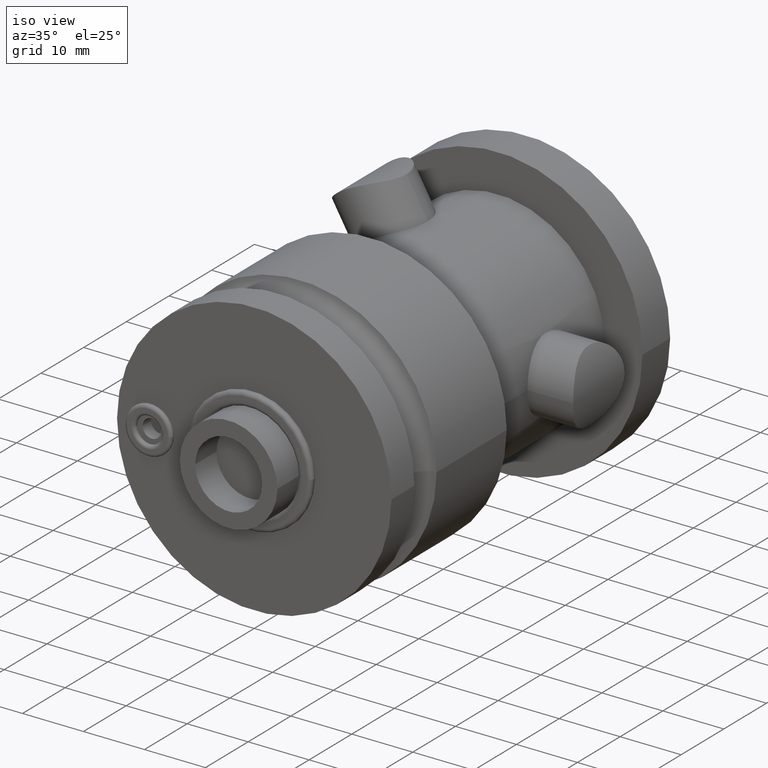
[diagram: clean part render]
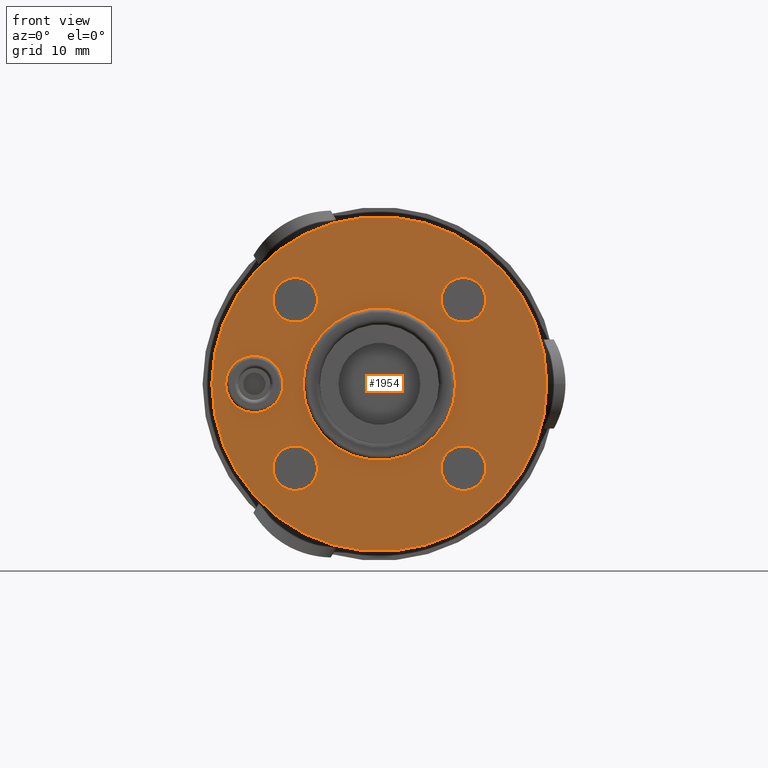
[diagram: tour spotlight — one face highlighted and labeled with its STEP entity id]
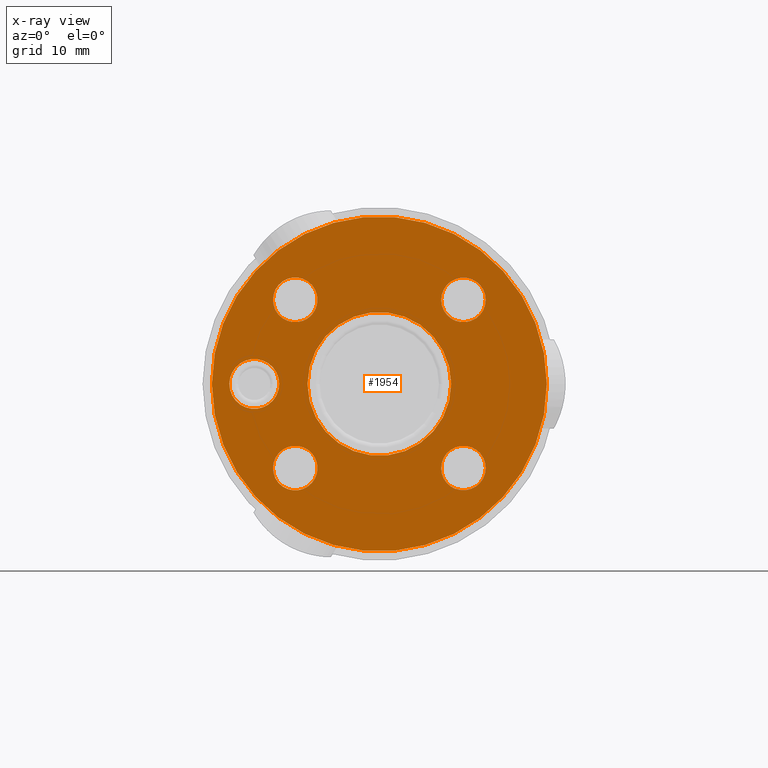
[diagram: x-ray of the same camera — body ghosted, this tour face saturated]
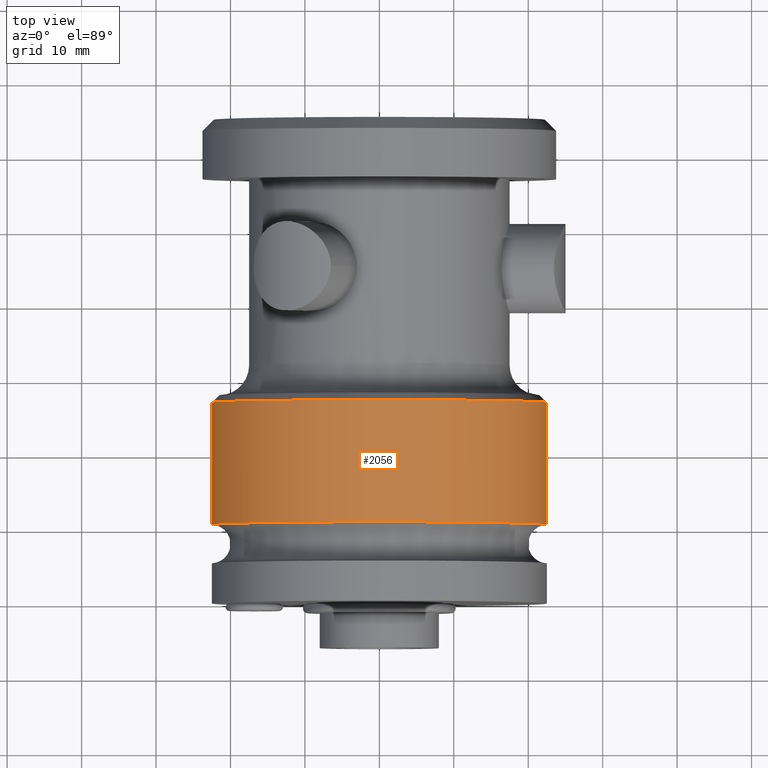
[diagram: tour spotlight — one face highlighted and labeled with its STEP entity id]
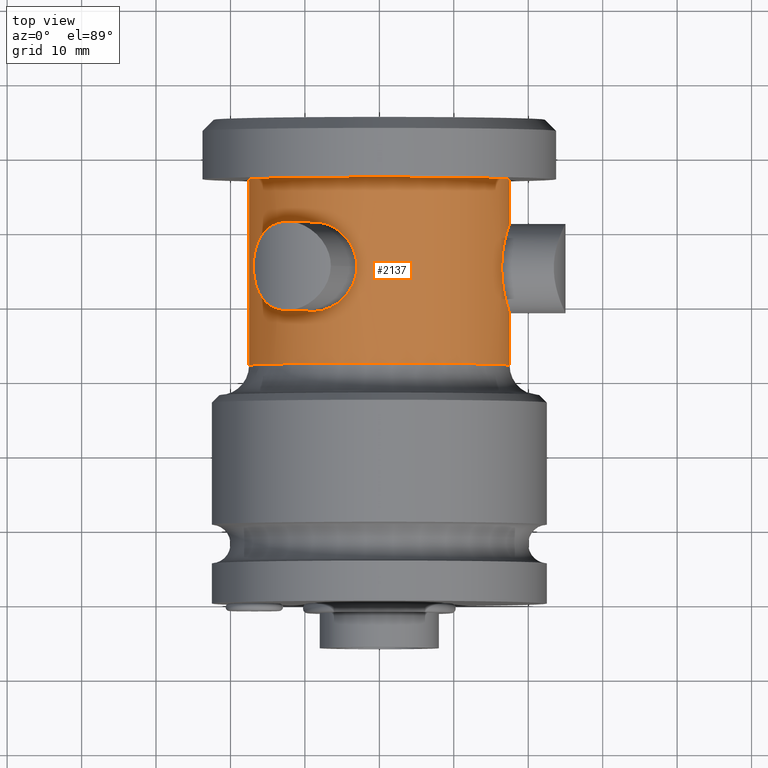
[diagram: tour spotlight — one face highlighted and labeled with its STEP entity id]
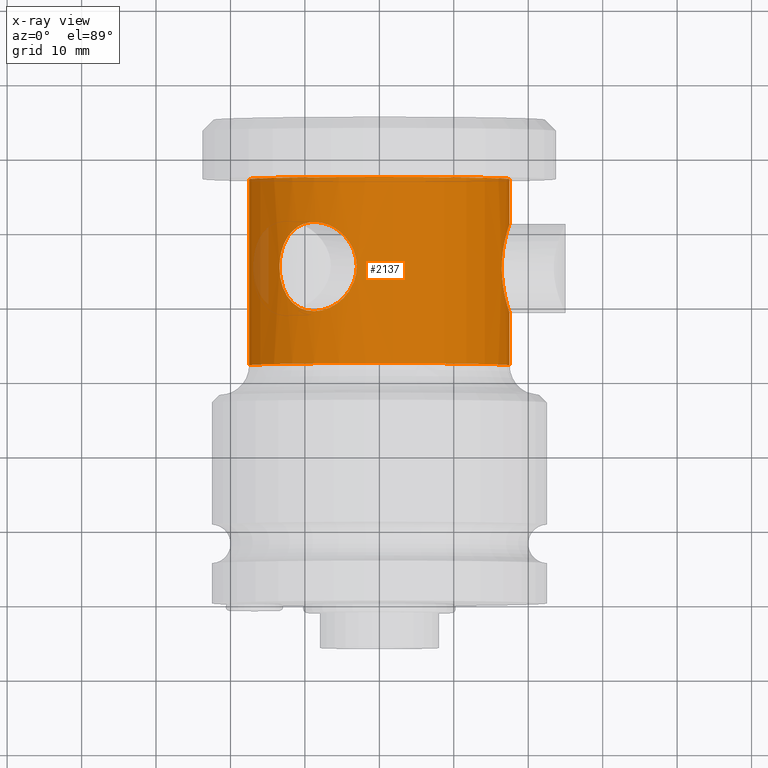
[diagram: x-ray of the same camera — body ghosted, this tour face saturated]
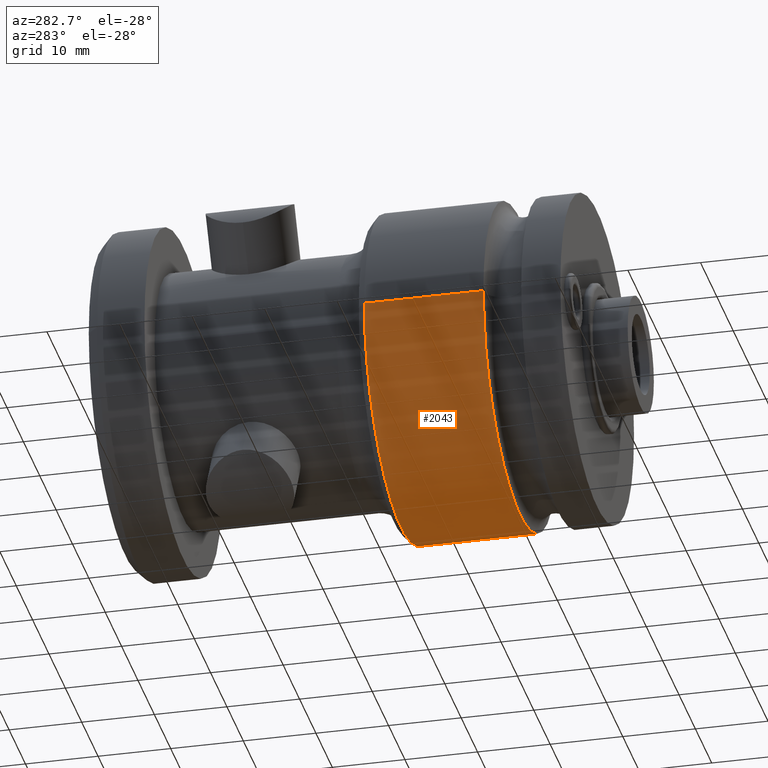
[diagram: tour spotlight — one face highlighted and labeled with its STEP entity id]
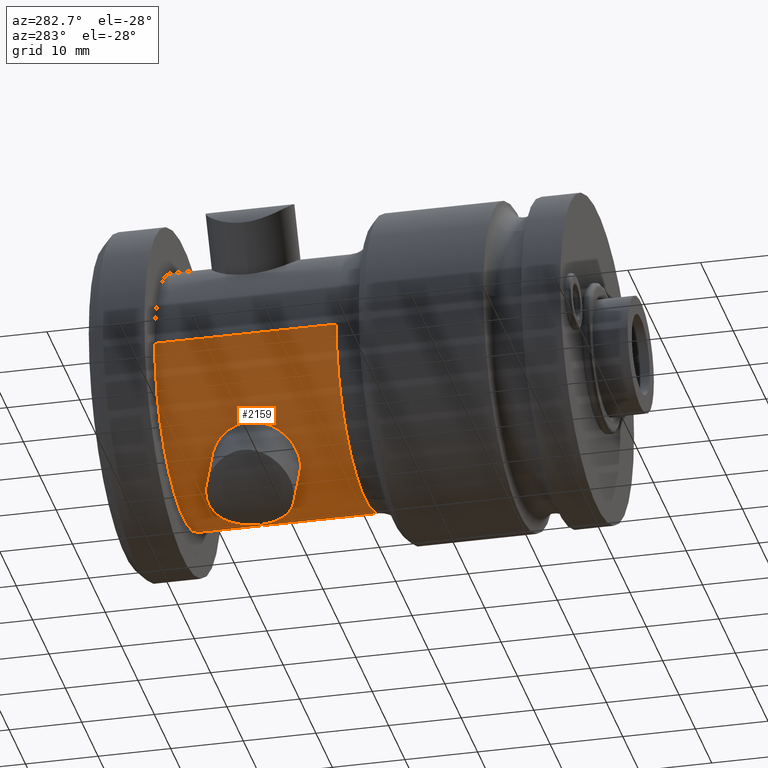
[diagram: tour spotlight — one face highlighted and labeled with its STEP entity id]
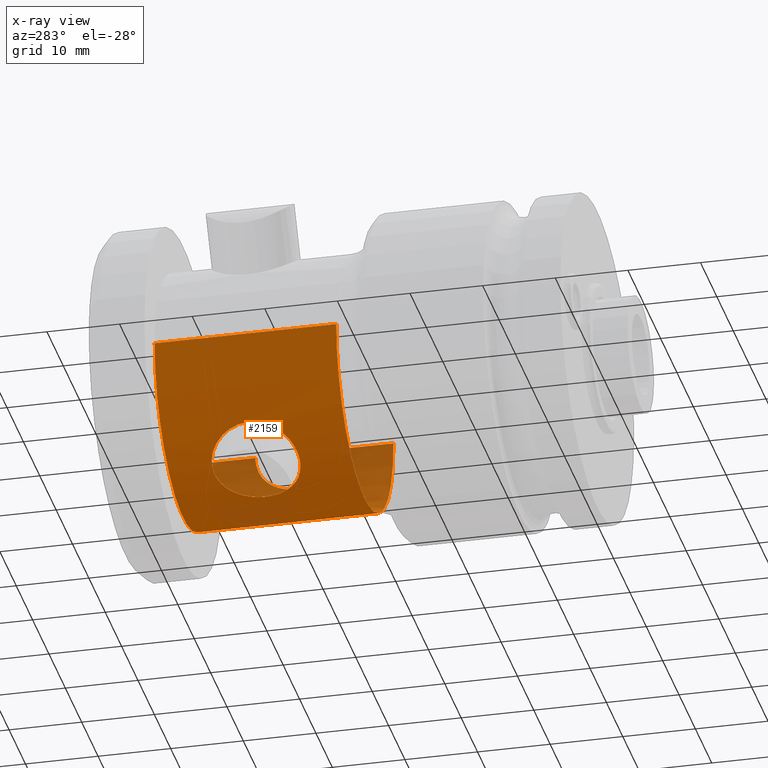
[diagram: x-ray of the same camera — body ghosted, this tour face saturated]
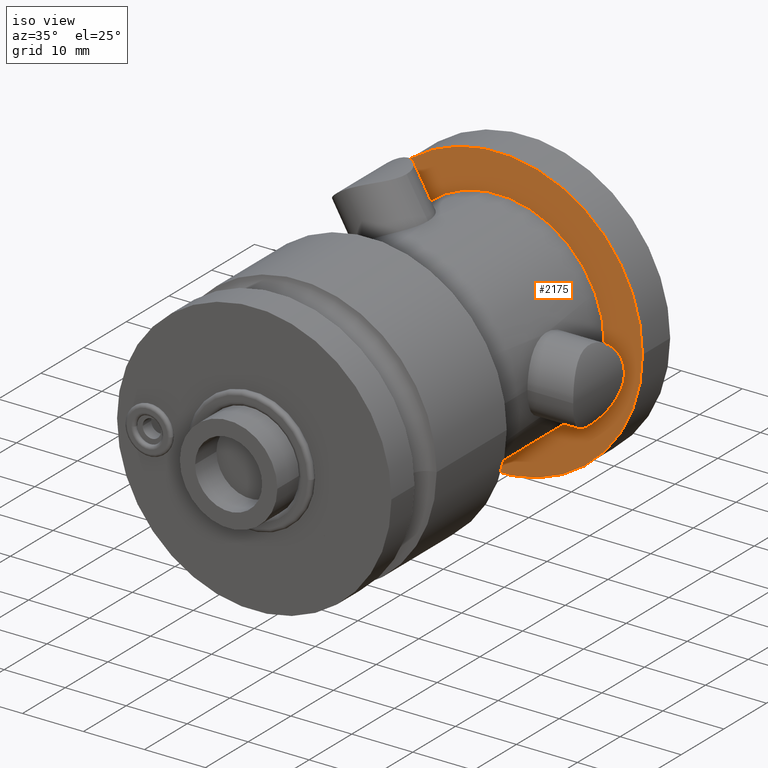
[diagram: tour spotlight — one face highlighted and labeled with its STEP entity id]
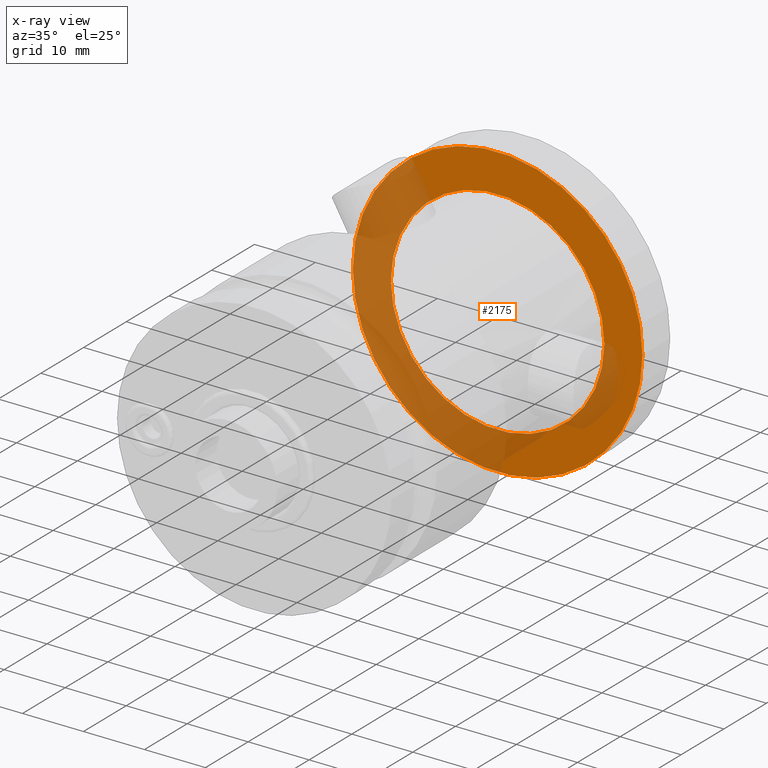
[diagram: x-ray of the same camera — body ghosted, this tour face saturated]
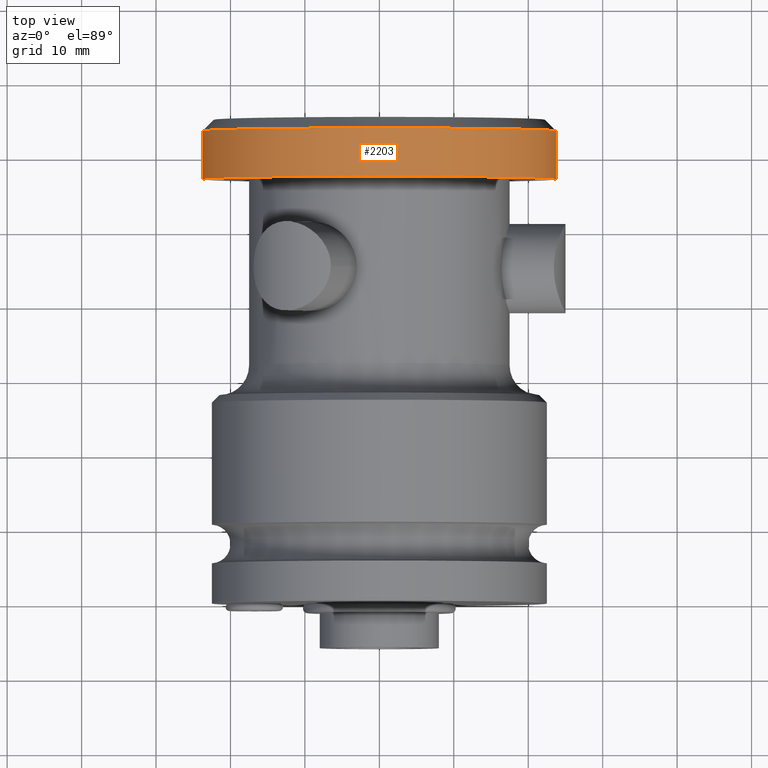
[diagram: tour spotlight — one face highlighted and labeled with its STEP entity id]
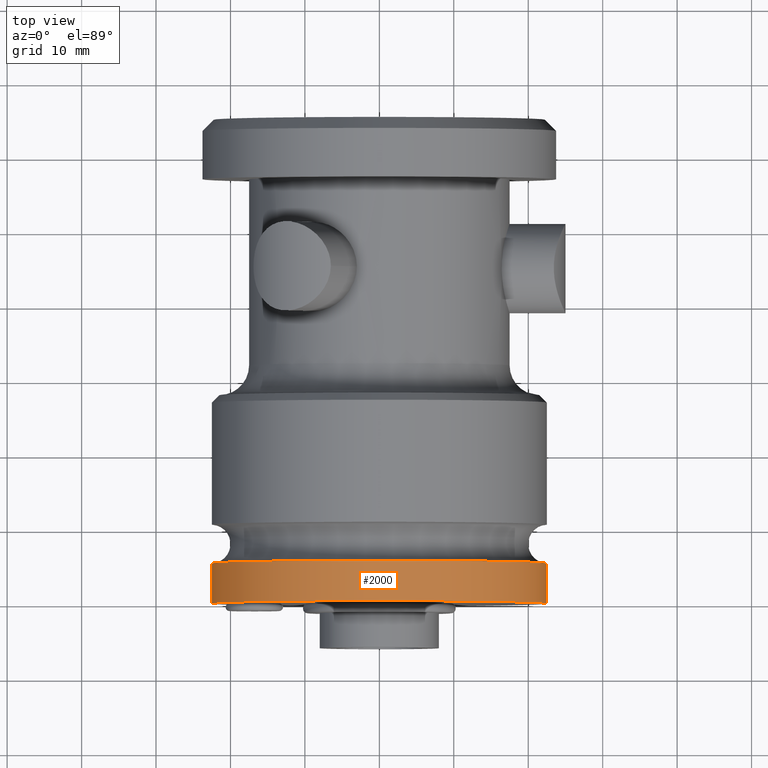
[diagram: tour spotlight — one face highlighted and labeled with its STEP entity id]
A machine part: a face-by-face anatomy tour. The part has 97 B-rep faces; the first image is the clean iso view, then the 8 largest visible faces are spotlighted one at a time (largest first), each with its STEP entity span.

Face 1 — front view, entity #1954. An x-ray twin of the same camera follows (body ghosted, this face saturated) — the face is partly hidden behind the body. In plain terms, the highlighted planar face has unit normal (0, 1, 0).
Definition (entity closure, byte-faithful):
#336=CARTESIAN_POINT('',(1.13E1,0.E0,1.13E1));
#337=DIRECTION('',(0.E0,-1.E0,0.E0));
#338=DIRECTION('',(-1.E0,0.E0,0.E0));
#339=AXIS2_PLACEMENT_3D('',#336,#337,#338);
#344=CARTESIAN_POINT('',(1.13E1,0.E0,1.13E1));
#345=DIRECTION('',(0.E0,-1.E0,0.E0));
#346=DIRECTION('',(1.E0,0.E0,0.E0));
#347=AXIS2_PLACEMENT_3D('',#344,#345,#346);
#352=CARTESIAN_POINT('',(-1.13E1,0.E0,1.13E1));
#353=DIRECTION('',(0.E0,-1.E0,0.E0));
#354=DIRECTION('',(-1.E0,0.E0,0.E0));
#355=AXIS2_PLACEMENT_3D('',#352,#353,#354);
#360=CARTESIAN_POINT('',(-1.13E1,0.E0,1.13E1));
#361=DIRECTION('',(0.E0,-1.E0,0.E0));
#362=DIRECTION('',(1.E0,0.E0,0.E0));
#363=AXIS2_PLACEMENT_3D('',#360,#361,#362);
#368=CARTESIAN_POINT('',(1.13E1,0.E0,-1.13E1));
#369=DIRECTION('',(0.E0,-1.E0,0.E0));
#370=DIRECTION('',(-1.E0,0.E0,0.E0));
#371=AXIS2_PLACEMENT_3D('',#368,#369,#370);
#376=CARTESIAN_POINT('',(1.13E1,0.E0,-1.13E1));
#377=DIRECTION('',(0.E0,-1.E0,0.E0));
#378=DIRECTION('',(1.E0,0.E0,0.E0));
#379=AXIS2_PLACEMENT_3D('',#376,#377,#378);
#384=CARTESIAN_POINT('',(-1.13E1,0.E0,-1.13E1));
#385=DIRECTION('',(0.E0,-1.E0,0.E0));
#386=DIRECTION('',(-1.E0,0.E0,0.E0));
#387=AXIS2_PLACEMENT_3D('',#384,#385,#386);
#392=CARTESIAN_POINT('',(-1.13E1,0.E0,-1.13E1));
#393=DIRECTION('',(0.E0,-1.E0,0.E0));
#394=DIRECTION('',(1.E0,0.E0,0.E0));
#395=AXIS2_PLACEMENT_3D('',#392,#393,#394);
#416=CARTESIAN_POINT('',(-1.68E1,0.E0,0.E0));
#417=DIRECTION('',(0.E0,1.E0,0.E0));
#418=DIRECTION('',(1.E0,0.E0,0.E0));
#419=AXIS2_PLACEMENT_3D('',#416,#417,#418);
#424=CARTESIAN_POINT('',(-1.68E1,0.E0,0.E0));
#425=DIRECTION('',(0.E0,1.E0,0.E0));
#426=DIRECTION('',(-1.E0,0.E0,0.E0));
#427=AXIS2_PLACEMENT_3D('',#424,#425,#426);
#432=CARTESIAN_POINT('',(0.E0,7.538414337205E-14,0.E0));
#433=DIRECTION('',(0.E0,1.E0,0.E0));
#434=DIRECTION('',(-1.E0,0.E0,0.E0));
#435=AXIS2_PLACEMENT_3D('',#432,#433,#434);
#440=CARTESIAN_POINT('',(0.E0,7.538414337205E-14,0.E0));
#441=DIRECTION('',(0.E0,1.E0,0.E0));
#442=DIRECTION('',(1.E0,0.E0,0.E0));
#443=AXIS2_PLACEMENT_3D('',#440,#441,#442);
#448=CARTESIAN_POINT('',(0.E0,0.E0,0.E0));
#449=DIRECTION('',(0.E0,1.E0,0.E0));
#450=DIRECTION('',(1.E0,0.E0,0.E0));
#451=AXIS2_PLACEMENT_3D('',#448,#449,#450);
#463=CARTESIAN_POINT('',(0.E0,0.E0,0.E0));
#464=DIRECTION('',(0.E0,-1.E0,0.E0));
#465=DIRECTION('',(1.E0,0.E0,0.E0));
#466=AXIS2_PLACEMENT_3D('',#463,#464,#465);
#1461=CARTESIAN_POINT('',(2.25E1,0.E0,0.E0));
#1463=VERTEX_POINT('',#1461);
#1483=CARTESIAN_POINT('',(-2.25E1,0.E0,0.E0));
#1485=VERTEX_POINT('',#1483);
#1527=CARTESIAN_POINT('',(8.3E0,0.E0,1.13E1));
#1528=CARTESIAN_POINT('',(1.43E1,0.E0,1.13E1));
#1529=VERTEX_POINT('',#1527);
#1530=VERTEX_POINT('',#1528);
#1541=CARTESIAN_POINT('',(-1.43E1,0.E0,1.13E1));
#1542=VERTEX_POINT('',#1541);
#1543=CARTESIAN_POINT('',(-8.3E0,0.E0,1.13E1));
#1544=VERTEX_POINT('',#1543);
#1555=CARTESIAN_POINT('',(8.3E0,0.E0,-1.13E1));
#1556=VERTEX_POINT('',#1555);
#1557=CARTESIAN_POINT('',(1.43E1,0.E0,-1.13E1));
#1558=VERTEX_POINT('',#1557);
#1569=CARTESIAN_POINT('',(-1.43E1,0.E0,-1.13E1));
#1570=VERTEX_POINT('',#1569);
#1571=CARTESIAN_POINT('',(-8.3E0,0.E0,-1.13E1));
#1572=VERTEX_POINT('',#1571);
#1585=CARTESIAN_POINT('',(-1.345E1,0.E0,0.E0));
#1586=CARTESIAN_POINT('',(-2.015E1,0.E0,0.E0));
#1587=VERTEX_POINT('',#1585);
#1588=VERTEX_POINT('',#1586);
#1609=CARTESIAN_POINT('',(-9.65E0,7.538414337205E-14,0.E0));
#1610=CARTESIAN_POINT('',(9.65E0,7.538414337205E-14,0.E0));
#1611=VERTEX_POINT('',#1609);
#1612=VERTEX_POINT('',#1610);
#1908=CARTESIAN_POINT('',(0.E0,0.E0,0.E0));
#1909=DIRECTION('',(0.E0,1.E0,0.E0));
#1910=DIRECTION('',(1.E0,0.E0,0.E0));
#1911=AXIS2_PLACEMENT_3D('',#1908,#1909,#1910);
#1912=PLANE('',#1911);
#1914=ORIENTED_EDGE('',*,*,#1913,.T.);
#1916=ORIENTED_EDGE('',*,*,#1915,.F.);
#1917=EDGE_LOOP('',(#1914,#1916));
#1918=FACE_OUTER_BOUND('',#1917,.F.);
#1920=ORIENTED_EDGE('',*,*,#1919,.T.);
#1922=ORIENTED_EDGE('',*,*,#1921,.T.);
#1923=EDGE_LOOP('',(#1920,#1922));
#1924=FACE_BOUND('',#1923,.F.);
#1926=ORIENTED_EDGE('',*,*,#1925,.T.);
#1928=ORIENTED_EDGE('',*,*,#1927,.T.);
#1929=EDGE_LOOP('',(#1926,#1928));
#1930=FACE_BOUND('',#1929,.F.);
#1932=ORIENTED_EDGE('',*,*,#1931,.T.);
#1934=ORIENTED_EDGE('',*,*,#1933,.T.);
#1935=EDGE_LOOP('',(#1932,#1934));
#1936=FACE_BOUND('',#1935,.F.);
#1938=ORIENTED_EDGE('',*,*,#1937,.T.);
#1940=ORIENTED_EDGE('',*,*,#1939,.T.);
#1941=EDGE_LOOP('',(#1938,#1940));
#1942=FACE_BOUND('',#1941,.F.);
#1944=ORIENTED_EDGE('',*,*,#1943,.F.);
#1946=ORIENTED_EDGE('',*,*,#1945,.F.);
#1947=EDGE_LOOP('',(#1944,#1946));
#1948=FACE_BOUND('',#1947,.F.);
#1949=ORIENTED_EDGE('',*,*,#1898,.F.);
#1951=ORIENTED_EDGE('',*,*,#1950,.F.);
#1952=EDGE_LOOP('',(#1949,#1951));
#1953=FACE_BOUND('',#1952,.F.);
#340=CIRCLE('',#339,3.E0);
#348=CIRCLE('',#347,3.E0);
#356=CIRCLE('',#355,3.E0);
#364=CIRCLE('',#363,3.E0);
#372=CIRCLE('',#371,3.E0);
#380=CIRCLE('',#379,3.E0);
#388=CIRCLE('',#387,3.E0);
#396=CIRCLE('',#395,3.E0);
#420=CIRCLE('',#419,3.35E0);
#428=CIRCLE('',#427,3.35E0);
#436=CIRCLE('',#435,9.65E0);
#444=CIRCLE('',#443,9.65E0);
#452=CIRCLE('',#451,2.25E1);
#467=CIRCLE('',#466,2.25E1);
#1898=EDGE_CURVE('',#1611,#1612,#436,.T.);
#1913=EDGE_CURVE('',#1463,#1485,#452,.T.);
#1915=EDGE_CURVE('',#1463,#1485,#467,.T.);
#1919=EDGE_CURVE('',#1529,#1530,#340,.T.);
#1921=EDGE_CURVE('',#1530,#1529,#348,.T.);
#1925=EDGE_CURVE('',#1542,#1544,#356,.T.);
#1927=EDGE_CURVE('',#1544,#1542,#364,.T.);
#1931=EDGE_CURVE('',#1556,#1558,#372,.T.);
#1933=EDGE_CURVE('',#1558,#1556,#380,.T.);
#1937=EDGE_CURVE('',#1570,#1572,#388,.T.);
#1939=EDGE_CURVE('',#1572,#1570,#396,.T.);
#1943=EDGE_CURVE('',#1587,#1588,#420,.T.);
#1945=EDGE_CURVE('',#1588,#1587,#428,.T.);
#1950=EDGE_CURVE('',#1612,#1611,#444,.T.);
#1954=ADVANCED_FACE('',(#1918,#1924,#1930,#1936,#1942,#1948,#1953),#1912,.F.);

Face 2 — top view, entity #2056. In plain terms, the highlighted cylindrical surface (partial cylindrical patch) has radius 22.5 mm, axis along (0, 1, 0).
Definition (entity closure, byte-faithful):
#518=DIRECTION('',(0.E0,1.E0,0.E0));
#519=VECTOR('',#518,1.6402E1);
#520=CARTESIAN_POINT('',(2.25E1,1.0598E1,0.E0));
#521=LINE('',#520,#519);
#525=CARTESIAN_POINT('',(0.E0,1.0598E1,0.E0));
#526=DIRECTION('',(0.E0,-1.E0,0.E0));
#527=DIRECTION('',(1.E0,0.E0,0.E0));
#528=AXIS2_PLACEMENT_3D('',#525,#526,#527);
#533=DIRECTION('',(0.E0,1.E0,0.E0));
#534=VECTOR('',#533,1.6402E1);
#535=CARTESIAN_POINT('',(-2.25E1,1.0598E1,0.E0));
#536=LINE('',#535,#534);
#547=CARTESIAN_POINT('',(0.E0,2.7E1,0.E0));
#548=DIRECTION('',(0.E0,-1.E0,0.E0));
#549=DIRECTION('',(1.E0,0.E0,0.E0));
#550=AXIS2_PLACEMENT_3D('',#547,#548,#549);
#1465=CARTESIAN_POINT('',(2.25E1,1.0598E1,0.E0));
#1466=VERTEX_POINT('',#1465);
#1467=CARTESIAN_POINT('',(2.25E1,2.7E1,0.E0));
#1468=VERTEX_POINT('',#1467);
#1487=CARTESIAN_POINT('',(-2.25E1,1.0598E1,0.E0));
#1488=VERTEX_POINT('',#1487);
#1489=CARTESIAN_POINT('',(-2.25E1,2.7E1,0.E0));
#1490=VERTEX_POINT('',#1489);
#2044=CARTESIAN_POINT('',(0.E0,0.E0,0.E0));
#2045=DIRECTION('',(0.E0,1.E0,0.E0));
#2046=DIRECTION('',(1.E0,0.E0,0.E0));
#2047=AXIS2_PLACEMENT_3D('',#2044,#2045,#2046);
#2048=CYLINDRICAL_SURFACE('',#2047,2.25E1);
#2049=ORIENTED_EDGE('',*,*,#2034,.F.);
#2050=ORIENTED_EDGE('',*,*,#2011,.T.);
#2051=ORIENTED_EDGE('',*,*,#2038,.T.);
#2053=ORIENTED_EDGE('',*,*,#2052,.F.);
#2054=EDGE_LOOP('',(#2049,#2050,#2051,#2053));
#2055=FACE_OUTER_BOUND('',#2054,.F.);
#529=CIRCLE('',#528,2.25E1);
#551=CIRCLE('',#550,2.25E1);
#2011=EDGE_CURVE('',#1466,#1488,#529,.T.);
#2034=EDGE_CURVE('',#1466,#1468,#521,.T.);
#2038=EDGE_CURVE('',#1488,#1490,#536,.T.);
#2052=EDGE_CURVE('',#1468,#1490,#551,.T.);
#2056=ADVANCED_FACE('',(#2055),#2048,.T.);

Face 3 — top view, entity #2137. An x-ray twin of the same camera follows (body ghosted, this face saturated) — the face is partly hidden behind the body. In plain terms, the highlighted cylindrical surface (partial cylindrical patch) has radius 17.5 mm, axis along (0, 1, 0).
Definition (entity closure, byte-faithful):
#602=DIRECTION('',(0.E0,1.E0,0.E0));
#603=VECTOR('',#602,7.E0);
#604=CARTESIAN_POINT('',(1.75E1,3.2E1,0.E0));
#605=LINE('',#604,#603);
#609=CARTESIAN_POINT('',(0.E0,3.2E1,0.E0));
#610=DIRECTION('',(0.E0,-1.E0,0.E0));
#611=DIRECTION('',(1.E0,0.E0,0.E0));
#612=AXIS2_PLACEMENT_3D('',#609,#610,#611);
#617=DIRECTION('',(0.E0,1.E0,0.E0));
#618=VECTOR('',#617,2.5E1);
#619=CARTESIAN_POINT('',(-1.75E1,3.2E1,0.E0));
#620=LINE('',#619,#618);
#624=DIRECTION('',(0.E0,1.E0,0.E0));
#625=VECTOR('',#624,6.E0);
#626=CARTESIAN_POINT('',(1.75E1,5.1E1,0.E0));
#627=LINE('',#626,#625);
#631=CARTESIAN_POINT('',(1.75E1,5.1E1,0.E0));
#632=CARTESIAN_POINT('',(1.75E1,5.1E1,4.007529984103E-1));
#633=CARTESIAN_POINT('',(1.747281806051E1,5.092141108049E1,1.185205291521E0));
#634=CARTESIAN_POINT('',(1.735641195941E1,5.057272085021E1,2.327036970790E0));
#635=CARTESIAN_POINT('',(1.718283664068E1,5.001296004259E1,3.366028551128E0));
#636=CARTESIAN_POINT('',(1.697700597861E1,4.926432791154E1,4.275097064066E0));
#637=CARTESIAN_POINT('',(1.676858526172E1,4.835307785679E1,5.021880465776E0));
#638=CARTESIAN_POINT('',(1.658886055043E1,4.730964047825E1,5.579802803184E0));
#639=CARTESIAN_POINT('',(1.646685567820E1,4.616859296557E1,5.925347792355E0));
#640=CARTESIAN_POINT('',(1.642461681851E1,4.497532677855E1,6.039728991350E0));
#641=CARTESIAN_POINT('',(1.647048298042E1,4.378106305596E1,5.915427741105E0));
#642=CARTESIAN_POINT('',(1.659588846902E1,4.264148953873E1,5.559131708274E0));
#643=CARTESIAN_POINT('',(1.677641054753E1,4.160925955500E1,4.995804778023E0));
#644=CARTESIAN_POINT('',(1.698358069380E1,4.071029592329E1,4.248727573069E0));
#645=CARTESIAN_POINT('',(1.718712665081E1,3.997273390014E1,3.343572620743E0));
#646=CARTESIAN_POINT('',(1.735858381461E1,3.942066863224E1,2.309707039861E0));
#647=CARTESIAN_POINT('',(1.747325197928E1,3.907734853007E1,1.175889101292E0));
#648=CARTESIAN_POINT('',(1.75E1,3.9E1,3.974773706452E-1));
#649=CARTESIAN_POINT('',(1.75E1,3.9E1,0.E0));
#654=CARTESIAN_POINT('',(-3.023488686702E0,4.5E1,1.723683602525E1));
#655=CARTESIAN_POINT('',(-3.023488686702E0,4.538872430557E1,1.723683602525E1));
#656=CARTESIAN_POINT('',(-3.099095701087E0,4.615654348767E1,1.722391975561E1));
#657=CARTESIAN_POINT('',(-3.471193389359E0,4.733625505151E1,1.715456260551E1));
#658=CARTESIAN_POINT('',(-4.051262207683E0,4.837343068061E1,1.702922158992E1));
#659=CARTESIAN_POINT('',(-4.754079754525E0,4.921687624790E1,1.684691063884E1));
#660=CARTESIAN_POINT('',(-5.438799419499E0,4.982391095296E1,1.663948777041E1));
#661=CARTESIAN_POINT('',(-6.269110529196E0,5.037011879586E1,1.634771861020E1));
#662=CARTESIAN_POINT('',(-7.179007616126E0,5.076546082201E1,1.597037034133E1));
#663=CARTESIAN_POINT('',(-8.098046347606E0,5.098259754282E1,1.552485460451E1));
#664=CARTESIAN_POINT('',(-8.991250226120E0,5.102289709334E1,1.502526539107E1));
#665=CARTESIAN_POINT('',(-9.858685509703E0,5.088802054219E1,1.447095800542E1));
#666=CARTESIAN_POINT('',(-1.069374674445E1,5.056723779730E1,1.386564810380E1));
#667=CARTESIAN_POINT('',(-1.149674721269E1,5.002256218852E1,1.320662800759E1));
#668=CARTESIAN_POINT('',(-1.219184973792E1,4.926424645025E1,1.256417708583E1));
#669=CARTESIAN_POINT('',(-1.273395630728E1,4.835074565178E1,1.201034804002E1));
#670=CARTESIAN_POINT('',(-1.312381085689E1,4.731803942685E1,1.157968485522E1));
#671=CARTESIAN_POINT('',(-1.336191492183E1,4.618533131886E1,1.130162915918E1));
#672=CARTESIAN_POINT('',(-1.341579353280E1,4.540195681558E1,1.123683602644E1));
#673=CARTESIAN_POINT('',(-1.341579353280E1,4.5E1,1.123683602644E1));
#678=CARTESIAN_POINT('',(-1.341579353280E1,4.5E1,1.123683602644E1));
#679=CARTESIAN_POINT('',(-1.341579353280E1,4.459413259427E1,1.123683602644E1));
#680=CARTESIAN_POINT('',(-1.336090541019E1,4.380310372310E1,1.130285144867E1));
#681=CARTESIAN_POINT('',(-1.311762184099E1,4.265806646773E1,1.158684679774E1));
#682=CARTESIAN_POINT('',(-1.271877233918E1,4.161623626202E1,1.202666973516E1));
#683=CARTESIAN_POINT('',(-1.216709070687E1,4.070161008469E1,1.258845385442E1));
#684=CARTESIAN_POINT('',(-1.146194987811E1,3.994722959156E1,1.323704461464E1));
#685=CARTESIAN_POINT('',(-1.065432049238E1,3.941262890040E1,1.389597749074E1));
#686=CARTESIAN_POINT('',(-9.819478521090E0,3.910221110797E1,1.449743962928E1));
#687=CARTESIAN_POINT('',(-8.958561980176E0,3.897608424019E1,1.504454686810E1));
#688=CARTESIAN_POINT('',(-8.073386615745E0,3.902156762474E1,1.553743914984E1));
#689=CARTESIAN_POINT('',(-7.165115470081E0,3.923984460858E1,1.597635945029E1));
#690=CARTESIAN_POINT('',(-6.265199149769E0,3.963280449112E1,1.634899066599E1));
#691=CARTESIAN_POINT('',(-5.445315348324E0,4.017152785196E1,1.663726223780E1));
#692=CARTESIAN_POINT('',(-4.762578854527E0,4.077497316198E1,1.684446352870E1));
#693=CARTESIAN_POINT('',(-4.064537940681E0,4.160800001197E1,1.702604735516E1));
#694=CARTESIAN_POINT('',(-3.479439650532E0,4.264384338715E1,1.715297121427E1));
#695=CARTESIAN_POINT('',(-3.101112342786E0,4.383022881567E1,1.722357599060E1));
#696=CARTESIAN_POINT('',(-3.023488686702E0,4.460616407920E1,1.723683602525E1));
#697=CARTESIAN_POINT('',(-3.023488686702E0,4.5E1,1.723683602525E1));
#710=CARTESIAN_POINT('',(1.75E1,3.9E1,0.E0));
#728=CARTESIAN_POINT('',(1.75E1,5.1E1,0.E0));
#781=CARTESIAN_POINT('',(0.E0,5.7E1,0.E0));
#782=DIRECTION('',(0.E0,-1.E0,0.E0));
#783=DIRECTION('',(1.E0,0.E0,0.E0));
#784=AXIS2_PLACEMENT_3D('',#781,#782,#783);
#1471=CARTESIAN_POINT('',(1.75E1,3.2E1,0.E0));
#1472=VERTEX_POINT('',#1471);
#1493=CARTESIAN_POINT('',(-1.75E1,3.2E1,0.E0));
#1494=VERTEX_POINT('',#1493);
#1495=CARTESIAN_POINT('',(-1.75E1,5.7E1,0.E0));
#1496=VERTEX_POINT('',#1495);
#1507=CARTESIAN_POINT('',(1.75E1,5.7E1,0.E0));
#1508=VERTEX_POINT('',#1507);
#1613=VERTEX_POINT('',#710);
#1614=VERTEX_POINT('',#728);
#1617=VERTEX_POINT('',#654);
#1618=VERTEX_POINT('',#673);
#2113=CARTESIAN_POINT('',(0.E0,0.E0,0.E0));
#2114=DIRECTION('',(0.E0,1.E0,0.E0));
#2115=DIRECTION('',(1.E0,0.E0,0.E0));
#2116=AXIS2_PLACEMENT_3D('',#2113,#2114,#2115);
#2117=CYLINDRICAL_SURFACE('',#2116,1.75E1);
#2119=ORIENTED_EDGE('',*,*,#2118,.F.);
#2120=ORIENTED_EDGE('',*,*,#2108,.T.);
#2122=ORIENTED_EDGE('',*,*,#2121,.T.);
#2124=ORIENTED_EDGE('',*,*,#2123,.F.);
#2126=ORIENTED_EDGE('',*,*,#2125,.F.);
#2128=ORIENTED_EDGE('',*,*,#2127,.T.);
#2129=EDGE_LOOP('',(#2119,#2120,#2122,#2124,#2126,#2128));
#2130=FACE_OUTER_BOUND('',#2129,.F.);
#2132=ORIENTED_EDGE('',*,*,#2131,.T.);
#2134=ORIENTED_EDGE('',*,*,#2133,.T.);
#2135=EDGE_LOOP('',(#2132,#2134));
#2136=FACE_BOUND('',#2135,.F.);
#613=CIRCLE('',#612,1.75E1);
#650=B_SPLINE_CURVE_WITH_KNOTS('',3,(#631,#632,#633,#634,#635,#636,#637,#638,
#639,#640,#641,#642,#643,#644,#645,#646,#647,#648,#649),.UNSPECIFIED.,.F.,.F.,
(4,1,1,1,1,1,1,1,1,1,1,1,1,1,1,1,4),(0.E0,6.25E-2,1.25E-1,1.875E-1,2.5E-1,
3.125E-1,3.75E-1,4.375E-1,5.E-1,5.625E-1,6.25E-1,6.875E-1,7.5E-1,8.125E-1,
8.75E-1,9.375E-1,1.E0),.UNSPECIFIED.);
#674=B_SPLINE_CURVE_WITH_KNOTS('',3,(#654,#655,#656,#657,#658,#659,#660,#661,
#662,#663,#664,#665,#666,#667,#668,#669,#670,#671,#672,#673),.UNSPECIFIED.,.F.,
.F.,(4,1,1,1,1,1,1,1,1,1,1,1,1,1,1,1,1,4),(0.E0,5.882352941176E-2,
1.176470588235E-1,1.764705882353E-1,2.352941176471E-1,2.941176470588E-1,
3.529411764706E-1,4.117647058824E-1,4.705882352941E-1,5.294117647059E-1,
5.882352941176E-1,6.470588235294E-1,7.058823529412E-1,7.647058823529E-1,
8.235294117647E-1,8.823529411765E-1,9.411764705882E-1,1.E0),.UNSPECIFIED.);
#698=B_SPLINE_CURVE_WITH_KNOTS('',3,(#678,#679,#680,#681,#682,#683,#684,#685,
#686,#687,#688,#689,#690,#691,#692,#693,#694,#695,#696,#697),.UNSPECIFIED.,.F.,
.F.,(4,1,1,1,1,1,1,1,1,1,1,1,1,1,1,1,1,4),(0.E0,5.882352941176E-2,
1.176470588235E-1,1.764705882353E-1,2.352941176471E-1,2.941176470588E-1,
3.529411764706E-1,4.117647058824E-1,4.705882352941E-1,5.294117647059E-1,
5.882352941176E-1,6.470588235294E-1,7.058823529412E-1,7.647058823529E-1,
8.235294117647E-1,8.823529411765E-1,9.411764705882E-1,1.E0),.UNSPECIFIED.);
#785=CIRCLE('',#784,1.75E1);
#2108=EDGE_CURVE('',#1472,#1494,#613,.T.);
#2118=EDGE_CURVE('',#1472,#1613,#605,.T.);
#2121=EDGE_CURVE('',#1494,#1496,#620,.T.);
#2123=EDGE_CURVE('',#1508,#1496,#785,.T.);
#2125=EDGE_CURVE('',#1614,#1508,#627,.T.);
#2127=EDGE_CURVE('',#1614,#1613,#650,.T.);
#2131=EDGE_CURVE('',#1617,#1618,#674,.T.);
#2133=EDGE_CURVE('',#1618,#1617,#698,.T.);
#2137=ADVANCED_FACE('',(#2130,#2136),#2117,.T.);

Face 4 — auxiliary view, entity #2043. In plain terms, the highlighted cylindrical surface (partial cylindrical patch) has radius 22.5 mm, axis along (0, 1, 0).
Definition (entity closure, byte-faithful):
#510=CARTESIAN_POINT('',(0.E0,1.0598E1,0.E0));
#511=DIRECTION('',(0.E0,1.E0,0.E0));
#512=DIRECTION('',(1.E0,0.E0,0.E0));
#513=AXIS2_PLACEMENT_3D('',#510,#511,#512);
#518=DIRECTION('',(0.E0,1.E0,0.E0));
#519=VECTOR('',#518,1.6402E1);
#520=CARTESIAN_POINT('',(2.25E1,1.0598E1,0.E0));
#521=LINE('',#520,#519);
#533=DIRECTION('',(0.E0,1.E0,0.E0));
#534=VECTOR('',#533,1.6402E1);
#535=CARTESIAN_POINT('',(-2.25E1,1.0598E1,0.E0));
#536=LINE('',#535,#534);
#562=CARTESIAN_POINT('',(0.E0,2.7E1,0.E0));
#563=DIRECTION('',(0.E0,1.E0,0.E0));
#564=DIRECTION('',(1.E0,0.E0,0.E0));
#565=AXIS2_PLACEMENT_3D('',#562,#563,#564);
#1465=CARTESIAN_POINT('',(2.25E1,1.0598E1,0.E0));
#1466=VERTEX_POINT('',#1465);
#1467=CARTESIAN_POINT('',(2.25E1,2.7E1,0.E0));
#1468=VERTEX_POINT('',#1467);
#1487=CARTESIAN_POINT('',(-2.25E1,1.0598E1,0.E0));
#1488=VERTEX_POINT('',#1487);
#1489=CARTESIAN_POINT('',(-2.25E1,2.7E1,0.E0));
#1490=VERTEX_POINT('',#1489);
#2029=CARTESIAN_POINT('',(0.E0,0.E0,0.E0));
#2030=DIRECTION('',(0.E0,1.E0,0.E0));
#2031=DIRECTION('',(1.E0,0.E0,0.E0));
#2032=AXIS2_PLACEMENT_3D('',#2029,#2030,#2031);
#2033=CYLINDRICAL_SURFACE('',#2032,2.25E1);
#2035=ORIENTED_EDGE('',*,*,#2034,.T.);
#2037=ORIENTED_EDGE('',*,*,#2036,.T.);
#2039=ORIENTED_EDGE('',*,*,#2038,.F.);
#2040=ORIENTED_EDGE('',*,*,#2022,.F.);
#2041=EDGE_LOOP('',(#2035,#2037,#2039,#2040));
#2042=FACE_OUTER_BOUND('',#2041,.F.);
#514=CIRCLE('',#513,2.25E1);
#566=CIRCLE('',#565,2.25E1);
#2022=EDGE_CURVE('',#1466,#1488,#514,.T.);
#2034=EDGE_CURVE('',#1466,#1468,#521,.T.);
#2036=EDGE_CURVE('',#1468,#1490,#566,.T.);
#2038=EDGE_CURVE('',#1488,#1490,#536,.T.);
#2043=ADVANCED_FACE('',(#2042),#2033,.T.);

Face 5 — auxiliary view, entity #2159. An x-ray twin of the same camera follows (body ghosted, this face saturated) — the face is partly hidden behind the body. In plain terms, the highlighted cylindrical surface (partial cylindrical patch) has radius 17.5 mm, axis along (0, 1, 0).
Definition (entity closure, byte-faithful):
#602=DIRECTION('',(0.E0,1.E0,0.E0));
#603=VECTOR('',#602,7.E0);
#604=CARTESIAN_POINT('',(1.75E1,3.2E1,0.E0));
#605=LINE('',#604,#603);
#617=DIRECTION('',(0.E0,1.E0,0.E0));
#618=VECTOR('',#617,2.5E1);
#619=CARTESIAN_POINT('',(-1.75E1,3.2E1,0.E0));
#620=LINE('',#619,#618);
#624=DIRECTION('',(0.E0,1.E0,0.E0));
#625=VECTOR('',#624,6.E0);
#626=CARTESIAN_POINT('',(1.75E1,5.1E1,0.E0));
#627=LINE('',#626,#625);
#702=CARTESIAN_POINT('',(0.E0,3.2E1,0.E0));
#703=DIRECTION('',(0.E0,1.E0,0.E0));
#704=DIRECTION('',(1.E0,0.E0,0.E0));
#705=AXIS2_PLACEMENT_3D('',#702,#703,#704);
#710=CARTESIAN_POINT('',(1.75E1,3.9E1,0.E0));
#711=CARTESIAN_POINT('',(1.75E1,3.9E1,-4.005500620612E-1));
#712=CARTESIAN_POINT('',(1.747284524418E1,3.907851109661E1,-1.184624925664E0));
#713=CARTESIAN_POINT('',(1.735654769023E1,3.942686631697E1,-2.325953891368E0));
#714=CARTESIAN_POINT('',(1.718311119541E1,3.998612322232E1,-3.364596509095E0));
#715=CARTESIAN_POINT('',(1.697741838873E1,4.073407527285E1,-4.273450387123E0));
#716=CARTESIAN_POINT('',(1.676907415129E1,4.164455976428E1,-5.020253812375E0));
#717=CARTESIAN_POINT('',(1.658932391849E1,4.268715363920E1,-5.578437972683E0));
#718=CARTESIAN_POINT('',(1.646714518204E1,4.382755750151E1,-5.924553623703E0));
#719=CARTESIAN_POINT('',(1.642463121754E1,4.502007391451E1,-6.039690789842E0));
#720=CARTESIAN_POINT('',(1.647009795732E1,4.621351746375E1,-5.916478621513E0));
#721=CARTESIAN_POINT('',(1.659508308732E1,4.735295754068E1,-5.561504141414E0));
#722=CARTESIAN_POINT('',(1.677554854092E1,4.838663514999E1,-4.998692045387E0));
#723=CARTESIAN_POINT('',(1.698290787798E1,4.928712311217E1,-4.251450206550E0));
#724=CARTESIAN_POINT('',(1.718671812825E1,5.002590693713E1,-3.345724355491E0));
#725=CARTESIAN_POINT('',(1.735837061096E1,5.057868151627E1,-2.311406882229E0));
#726=CARTESIAN_POINT('',(1.747321098026E1,5.092253474545E1,-1.176787837103E0));
#727=CARTESIAN_POINT('',(1.75E1,5.1E1,-3.977938445903E-1));
#728=CARTESIAN_POINT('',(1.75E1,5.1E1,0.E0));
#733=CARTESIAN_POINT('',(-1.341579353280E1,4.5E1,-1.123683602644E1));
#734=CARTESIAN_POINT('',(-1.341579353280E1,4.540468428208E1,-1.123683602644E1));
#735=CARTESIAN_POINT('',(-1.336117509462E1,4.619294577025E1,-1.130252110797E1));
#736=CARTESIAN_POINT('',(-1.312033520068E1,4.733119933479E1,-1.158369999319E1));
#737=CARTESIAN_POINT('',(-1.272603815700E1,4.836792420113E1,-1.201885103496E1));
#738=CARTESIAN_POINT('',(-1.217906679986E1,4.928210806518E1,-1.257674750574E1));
#739=CARTESIAN_POINT('',(-1.147666175461E1,5.004046732596E1,-1.322430279012E1));
#740=CARTESIAN_POINT('',(-1.066740355111E1,5.058106214557E1,-1.388603662101E1));
#741=CARTESIAN_POINT('',(-9.829904944925E0,5.089538929387E1,-1.449047383286E1));
#742=CARTESIAN_POINT('',(-8.965274138119E0,5.102387696046E1,-1.504065546349E1));
#743=CARTESIAN_POINT('',(-8.076257048392E0,5.097910892676E1,-1.553604949414E1));
#744=CARTESIAN_POINT('',(-7.163645995792E0,5.075993828801E1,-1.597711653382E1));
#745=CARTESIAN_POINT('',(-6.259566344865E0,5.036446580268E1,-1.635122996300E1));
#746=CARTESIAN_POINT('',(-5.435888666786E0,4.982151035111E1,-1.664038966045E1));
#747=CARTESIAN_POINT('',(-4.751737974913E0,4.921408000597E1,-1.684752019957E1));
#748=CARTESIAN_POINT('',(-4.055448901343E0,4.837861303959E1,-1.702816349902E1));
#749=CARTESIAN_POINT('',(-3.475089683504E0,4.734520330750E1,-1.715380535907E1));
#750=CARTESIAN_POINT('',(-3.100407711992E0,4.616434599468E1,-1.722369335142E1));
#751=CARTESIAN_POINT('',(-3.023488686702E0,4.539193124150E1,-1.723683602525E1));
#752=CARTESIAN_POINT('',(-3.023488686702E0,4.5E1,-1.723683602525E1));
#757=CARTESIAN_POINT('',(-3.023488686702E0,4.5E1,-1.723683602525E1));
#758=CARTESIAN_POINT('',(-3.023488686702E0,4.461290190237E1,-1.723683602525E1));
#759=CARTESIAN_POINT('',(-3.098511049182E0,4.384820204352E1,-1.722401677029E1));
#760=CARTESIAN_POINT('',(-3.467237328132E0,4.267388759274E1,-1.715531842883E1));
#761=CARTESIAN_POINT('',(-4.042614207476E0,4.163947885442E1,-1.703122173461E1));
#762=CARTESIAN_POINT('',(-4.743219634579E0,4.079416415331E1,-1.684996178541E1));
#763=CARTESIAN_POINT('',(-5.429205198411E0,4.018320858723E1,-1.664266242353E1));
#764=CARTESIAN_POINT('',(-6.262957157660E0,3.963290546532E1,-1.635015292064E1));
#765=CARTESIAN_POINT('',(-7.176773578372E0,3.923502011233E1,-1.597146734264E1));
#766=CARTESIAN_POINT('',(-8.099864291539E0,3.901690299974E1,-1.552400254271E1));
#767=CARTESIAN_POINT('',(-8.996694207684E0,3.897713660534E1,-1.502210816389E1));
#768=CARTESIAN_POINT('',(-9.867641072549E0,3.911410369102E1,-1.446495060327E1));
#769=CARTESIAN_POINT('',(-1.070532749854E1,3.943847031678E1,-1.385680665180E1));
#770=CARTESIAN_POINT('',(-1.151000948569E1,3.998873987381E1,-1.319508693986E1));
#771=CARTESIAN_POINT('',(-1.220273919199E1,4.075079631323E1,-1.255349445258E1));
#772=CARTESIAN_POINT('',(-1.274057646186E1,4.166388962487E1,-1.200320862774E1));
#773=CARTESIAN_POINT('',(-1.312629481514E1,4.269189534404E1,-1.157680281759E1));
#774=CARTESIAN_POINT('',(-1.336215809757E1,4.381829797925E1,-1.130133115633E1));
#775=CARTESIAN_POINT('',(-1.341579353280E1,4.459912729566E1,-1.123683602644E1));
#776=CARTESIAN_POINT('',(-1.341579353280E1,4.5E1,-1.123683602644E1));
#789=CARTESIAN_POINT('',(0.E0,5.7E1,0.E0));
#790=DIRECTION('',(0.E0,1.E0,0.E0));
#791=DIRECTION('',(1.E0,0.E0,0.E0));
#792=AXIS2_PLACEMENT_3D('',#789,#790,#791);
#1471=CARTESIAN_POINT('',(1.75E1,3.2E1,0.E0));
#1472=VERTEX_POINT('',#1471);
#1493=CARTESIAN_POINT('',(-1.75E1,3.2E1,0.E0));
#1494=VERTEX_POINT('',#1493);
#1495=CARTESIAN_POINT('',(-1.75E1,5.7E1,0.E0));
#1496=VERTEX_POINT('',#1495);
#1507=CARTESIAN_POINT('',(1.75E1,5.7E1,0.E0));
#1508=VERTEX_POINT('',#1507);
#1613=VERTEX_POINT('',#710);
#1614=VERTEX_POINT('',#728);
#1615=VERTEX_POINT('',#733);
#1616=VERTEX_POINT('',#752);
#2138=CARTESIAN_POINT('',(0.E0,0.E0,0.E0));
#2139=DIRECTION('',(0.E0,1.E0,0.E0));
#2140=DIRECTION('',(1.E0,0.E0,0.E0));
#2141=AXIS2_PLACEMENT_3D('',#2138,#2139,#2140);
#2142=CYLINDRICAL_SURFACE('',#2141,1.75E1);
#2143=ORIENTED_EDGE('',*,*,#2125,.T.);
#2145=ORIENTED_EDGE('',*,*,#2144,.T.);
#2146=ORIENTED_EDGE('',*,*,#2121,.F.);
#2147=ORIENTED_EDGE('',*,*,#2092,.F.);
#2148=ORIENTED_EDGE('',*,*,#2118,.T.);
#2150=ORIENTED_EDGE('',*,*,#2149,.T.);
#2151=EDGE_LOOP('',(#2143,#2145,#2146,#2147,#2148,#2150));
#2152=FACE_OUTER_BOUND('',#2151,.F.);
#2154=ORIENTED_EDGE('',*,*,#2153,.T.);
#2156=ORIENTED_EDGE('',*,*,#2155,.T.);
#2157=EDGE_LOOP('',(#2154,#2156));
#2158=FACE_BOUND('',#2157,.F.);
#706=CIRCLE('',#705,1.75E1);
#729=B_SPLINE_CURVE_WITH_KNOTS('',3,(#710,#711,#712,#713,#714,#715,#716,#717,
#718,#719,#720,#721,#722,#723,#724,#725,#726,#727,#728),.UNSPECIFIED.,.F.,.F.,
(4,1,1,1,1,1,1,1,1,1,1,1,1,1,1,1,4),(0.E0,6.25E-2,1.25E-1,1.875E-1,2.5E-1,
3.125E-1,3.75E-1,4.375E-1,5.E-1,5.625E-1,6.25E-1,6.875E-1,7.5E-1,8.125E-1,
8.75E-1,9.375E-1,1.E0),.UNSPECIFIED.);
#753=B_SPLINE_CURVE_WITH_KNOTS('',3,(#733,#734,#735,#736,#737,#738,#739,#740,
#741,#742,#743,#744,#745,#746,#747,#748,#749,#750,#751,#752),.UNSPECIFIED.,.F.,
.F.,(4,1,1,1,1,1,1,1,1,1,1,1,1,1,1,1,1,4),(0.E0,5.882352941176E-2,
1.176470588235E-1,1.764705882353E-1,2.352941176471E-1,2.941176470588E-1,
3.529411764706E-1,4.117647058824E-1,4.705882352941E-1,5.294117647059E-1,
5.882352941176E-1,6.470588235294E-1,7.058823529412E-1,7.647058823529E-1,
8.235294117647E-1,8.823529411765E-1,9.411764705882E-1,1.E0),.UNSPECIFIED.);
#777=B_SPLINE_CURVE_WITH_KNOTS('',3,(#757,#758,#759,#760,#761,#762,#763,#764,
#765,#766,#767,#768,#769,#770,#771,#772,#773,#774,#775,#776),.UNSPECIFIED.,.F.,
.F.,(4,1,1,1,1,1,1,1,1,1,1,1,1,1,1,1,1,4),(0.E0,5.882352941176E-2,
1.176470588235E-1,1.764705882353E-1,2.352941176471E-1,2.941176470588E-1,
3.529411764706E-1,4.117647058824E-1,4.705882352941E-1,5.294117647059E-1,
5.882352941176E-1,6.470588235294E-1,7.058823529412E-1,7.647058823529E-1,
8.235294117647E-1,8.823529411765E-1,9.411764705882E-1,1.E0),.UNSPECIFIED.);
#793=CIRCLE('',#792,1.75E1);
#2092=EDGE_CURVE('',#1472,#1494,#706,.T.);
#2118=EDGE_CURVE('',#1472,#1613,#605,.T.);
#2121=EDGE_CURVE('',#1494,#1496,#620,.T.);
#2125=EDGE_CURVE('',#1614,#1508,#627,.T.);
#2144=EDGE_CURVE('',#1508,#1496,#793,.T.);
#2149=EDGE_CURVE('',#1613,#1614,#729,.T.);
#2153=EDGE_CURVE('',#1615,#1616,#753,.T.);
#2155=EDGE_CURVE('',#1616,#1615,#777,.T.);
#2159=ADVANCED_FACE('',(#2152,#2158),#2142,.T.);

Face 6 — iso view, entity #2175. An x-ray twin of the same camera follows (body ghosted, this face saturated) — the face is partly hidden behind the body. In plain terms, the highlighted planar face has unit normal (0, 1, 0).
Definition (entity closure, byte-faithful):
#781=CARTESIAN_POINT('',(0.E0,5.7E1,0.E0));
#782=DIRECTION('',(0.E0,-1.E0,0.E0));
#783=DIRECTION('',(1.E0,0.E0,0.E0));
#784=AXIS2_PLACEMENT_3D('',#781,#782,#783);
#789=CARTESIAN_POINT('',(0.E0,5.7E1,0.E0));
#790=DIRECTION('',(0.E0,1.E0,0.E0));
#791=DIRECTION('',(1.E0,0.E0,0.E0));
#792=AXIS2_PLACEMENT_3D('',#789,#790,#791);
#797=CARTESIAN_POINT('',(0.E0,5.7E1,0.E0));
#798=DIRECTION('',(0.E0,1.E0,0.E0));
#799=DIRECTION('',(1.E0,0.E0,0.E0));
#800=AXIS2_PLACEMENT_3D('',#797,#798,#799);
#812=CARTESIAN_POINT('',(0.E0,5.7E1,0.E0));
#813=DIRECTION('',(0.E0,-1.E0,0.E0));
#814=DIRECTION('',(1.E0,0.E0,0.E0));
#815=AXIS2_PLACEMENT_3D('',#812,#813,#814);
#1473=CARTESIAN_POINT('',(2.375E1,5.7E1,0.E0));
#1475=VERTEX_POINT('',#1473);
#1495=CARTESIAN_POINT('',(-1.75E1,5.7E1,0.E0));
#1496=VERTEX_POINT('',#1495);
#1497=CARTESIAN_POINT('',(-2.375E1,5.7E1,0.E0));
#1499=VERTEX_POINT('',#1497);
#1507=CARTESIAN_POINT('',(1.75E1,5.7E1,0.E0));
#1508=VERTEX_POINT('',#1507);
#2160=CARTESIAN_POINT('',(0.E0,5.7E1,0.E0));
#2161=DIRECTION('',(0.E0,1.E0,0.E0));
#2162=DIRECTION('',(1.E0,0.E0,0.E0));
#2163=AXIS2_PLACEMENT_3D('',#2160,#2161,#2162);
#2164=PLANE('',#2163);
#2166=ORIENTED_EDGE('',*,*,#2165,.T.);
#2168=ORIENTED_EDGE('',*,*,#2167,.F.);
#2169=EDGE_LOOP('',(#2166,#2168));
#2170=FACE_OUTER_BOUND('',#2169,.F.);
#2171=ORIENTED_EDGE('',*,*,#2123,.T.);
#2172=ORIENTED_EDGE('',*,*,#2144,.F.);
#2173=EDGE_LOOP('',(#2171,#2172));
#2174=FACE_BOUND('',#2173,.F.);
#785=CIRCLE('',#784,1.75E1);
#793=CIRCLE('',#792,1.75E1);
#801=CIRCLE('',#800,2.375E1);
#816=CIRCLE('',#815,2.375E1);
#2123=EDGE_CURVE('',#1508,#1496,#785,.T.);
#2144=EDGE_CURVE('',#1508,#1496,#793,.T.);
#2165=EDGE_CURVE('',#1475,#1499,#801,.T.);
#2167=EDGE_CURVE('',#1475,#1499,#816,.T.);
#2175=ADVANCED_FACE('',(#2170,#2174),#2164,.F.);

Face 7 — top view, entity #2203. In plain terms, the highlighted cylindrical surface (partial cylindrical patch) has radius 23.75 mm, axis along (0, 1, 0).
Definition (entity closure, byte-faithful):
#805=DIRECTION('',(0.E0,1.E0,0.E0));
#806=VECTOR('',#805,6.5E0);
#807=CARTESIAN_POINT('',(2.375E1,5.7E1,0.E0));
#808=LINE('',#807,#806);
#812=CARTESIAN_POINT('',(0.E0,5.7E1,0.E0));
#813=DIRECTION('',(0.E0,-1.E0,0.E0));
#814=DIRECTION('',(1.E0,0.E0,0.E0));
#815=AXIS2_PLACEMENT_3D('',#812,#813,#814);
#820=DIRECTION('',(0.E0,1.E0,0.E0));
#821=VECTOR('',#820,6.5E0);
#822=CARTESIAN_POINT('',(-2.375E1,5.7E1,0.E0));
#823=LINE('',#822,#821);
#834=CARTESIAN_POINT('',(0.E0,6.35E1,0.E0));
#835=DIRECTION('',(0.E0,-1.E0,0.E0));
#836=DIRECTION('',(1.E0,0.E0,0.E0));
#837=AXIS2_PLACEMENT_3D('',#834,#835,#836);
#1473=CARTESIAN_POINT('',(2.375E1,5.7E1,0.E0));
#1474=CARTESIAN_POINT('',(2.375E1,6.35E1,0.E0));
#1475=VERTEX_POINT('',#1473);
#1476=VERTEX_POINT('',#1474);
#1497=CARTESIAN_POINT('',(-2.375E1,5.7E1,0.E0));
#1498=CARTESIAN_POINT('',(-2.375E1,6.35E1,0.E0));
#1499=VERTEX_POINT('',#1497);
#1500=VERTEX_POINT('',#1498);
#2191=CARTESIAN_POINT('',(0.E0,0.E0,0.E0));
#2192=DIRECTION('',(0.E0,1.E0,0.E0));
#2193=DIRECTION('',(1.E0,0.E0,0.E0));
#2194=AXIS2_PLACEMENT_3D('',#2191,#2192,#2193);
#2195=CYLINDRICAL_SURFACE('',#2194,2.375E1);
#2196=ORIENTED_EDGE('',*,*,#2181,.F.);
#2197=ORIENTED_EDGE('',*,*,#2167,.T.);
#2198=ORIENTED_EDGE('',*,*,#2185,.T.);
#2200=ORIENTED_EDGE('',*,*,#2199,.F.);
#2201=EDGE_LOOP('',(#2196,#2197,#2198,#2200));
#2202=FACE_OUTER_BOUND('',#2201,.F.);
#816=CIRCLE('',#815,2.375E1);
#838=CIRCLE('',#837,2.375E1);
#2167=EDGE_CURVE('',#1475,#1499,#816,.T.);
#2181=EDGE_CURVE('',#1475,#1476,#808,.T.);
#2185=EDGE_CURVE('',#1499,#1500,#823,.T.);
#2199=EDGE_CURVE('',#1476,#1500,#838,.T.);
#2203=ADVANCED_FACE('',(#2202),#2195,.T.);

Face 8 — top view, entity #2000. In plain terms, the highlighted cylindrical surface (partial cylindrical patch) has radius 22.5 mm, axis along (0, 1, 0).
Definition (entity closure, byte-faithful):
#456=DIRECTION('',(0.E0,1.E0,0.E0));
#457=VECTOR('',#456,5.402E0);
#458=CARTESIAN_POINT('',(2.25E1,0.E0,0.E0));
#459=LINE('',#458,#457);
#463=CARTESIAN_POINT('',(0.E0,0.E0,0.E0));
#464=DIRECTION('',(0.E0,-1.E0,0.E0));
#465=DIRECTION('',(1.E0,0.E0,0.E0));
#466=AXIS2_PLACEMENT_3D('',#463,#464,#465);
#471=DIRECTION('',(0.E0,1.E0,0.E0));
#472=VECTOR('',#471,5.402E0);
#473=CARTESIAN_POINT('',(-2.25E1,0.E0,0.E0));
#474=LINE('',#473,#472);
#486=CARTESIAN_POINT('',(0.E0,5.402E0,0.E0));
#487=DIRECTION('',(0.E0,-1.E0,0.E0));
#488=DIRECTION('',(1.E0,0.E0,0.E0));
#489=AXIS2_PLACEMENT_3D('',#486,#487,#488);
#1461=CARTESIAN_POINT('',(2.25E1,0.E0,0.E0));
#1462=CARTESIAN_POINT('',(2.25E1,5.402E0,0.E0));
#1463=VERTEX_POINT('',#1461);
#1464=VERTEX_POINT('',#1462);
#1483=CARTESIAN_POINT('',(-2.25E1,0.E0,0.E0));
#1484=CARTESIAN_POINT('',(-2.25E1,5.402E0,0.E0));
#1485=VERTEX_POINT('',#1483);
#1486=VERTEX_POINT('',#1484);
#1988=CARTESIAN_POINT('',(0.E0,0.E0,0.E0));
#1989=DIRECTION('',(0.E0,1.E0,0.E0));
#1990=DIRECTION('',(1.E0,0.E0,0.E0));
#1991=AXIS2_PLACEMENT_3D('',#1988,#1989,#1990);
#1992=CYLINDRICAL_SURFACE('',#1991,2.25E1);
#1993=ORIENTED_EDGE('',*,*,#1978,.F.);
#1994=ORIENTED_EDGE('',*,*,#1915,.T.);
#1995=ORIENTED_EDGE('',*,*,#1982,.T.);
#1997=ORIENTED_EDGE('',*,*,#1996,.F.);
#1998=EDGE_LOOP('',(#1993,#1994,#1995,#1997));
#1999=FACE_OUTER_BOUND('',#1998,.F.);
#467=CIRCLE('',#466,2.25E1);
#490=CIRCLE('',#489,2.25E1);
#1915=EDGE_CURVE('',#1463,#1485,#467,.T.);
#1978=EDGE_CURVE('',#1463,#1464,#459,.T.);
#1982=EDGE_CURVE('',#1485,#1486,#474,.T.);
#1996=EDGE_CURVE('',#1464,#1486,#490,.T.);
#2000=ADVANCED_FACE('',(#1999),#1992,.T.);